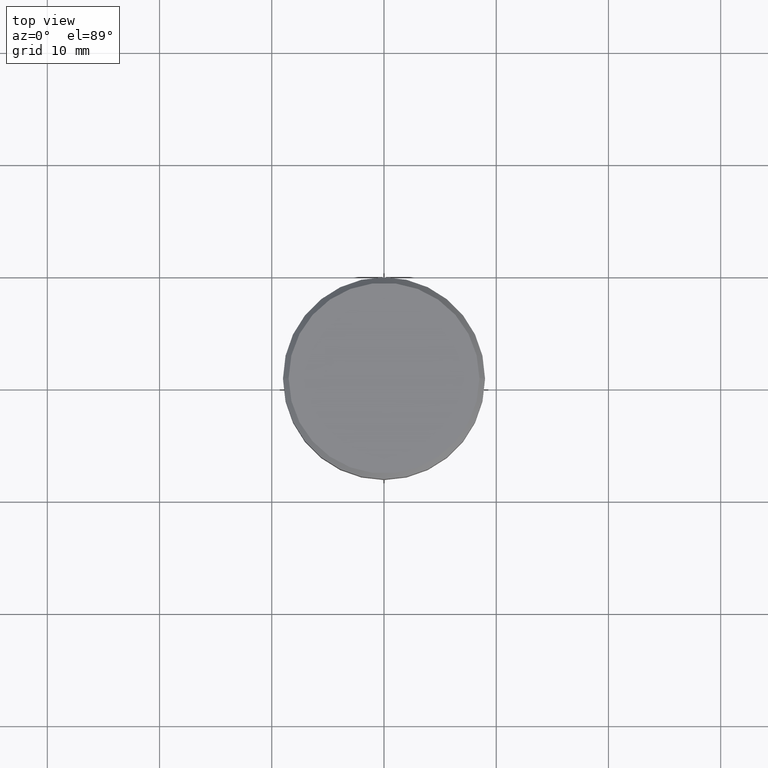
[diagram: clean part render]
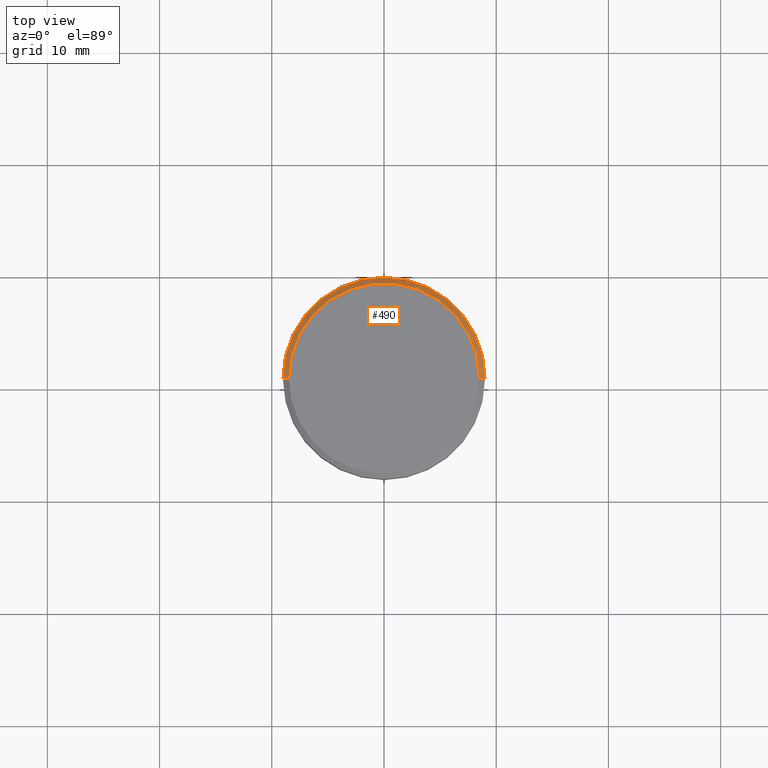
[diagram: same view with one face highlighted and labeled with its STEP entity id]
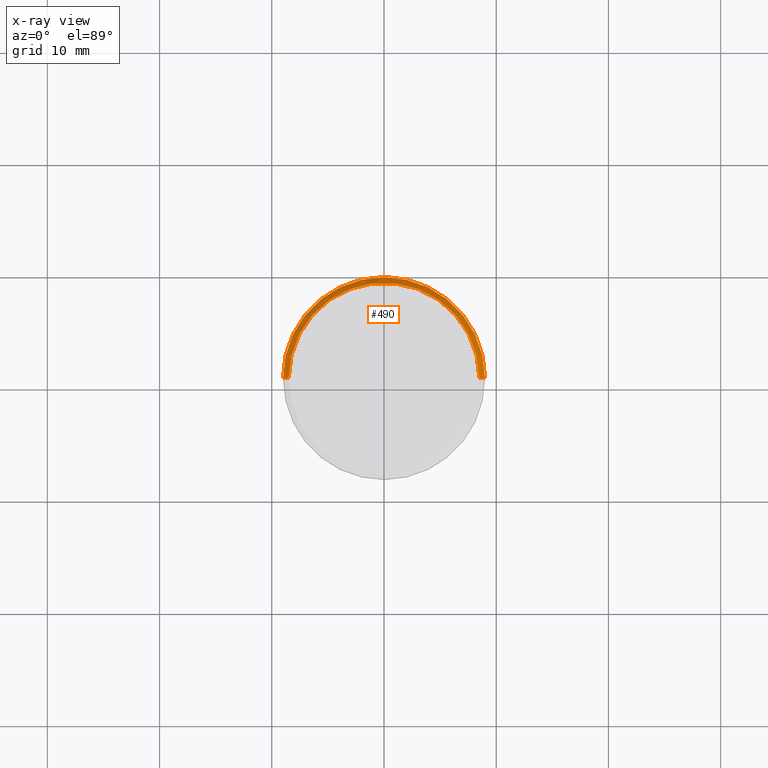
[diagram: x-ray of the same camera — body ghosted, the highlighted face saturated]
A machine part, top view. The second image highlights one B-rep face of the part: STEP entity #490.
The next image is the same camera in x-ray: the body ghosted, the highlighted face saturated — about 0% of this face is hidden behind the body in this view.
In plain terms, the highlighted conical surface has half-angle 45 deg.
Its self-contained STEP definition (entity closure, byte-faithful):
#22 = DIRECTION ( 'NONE',  ( 0.000000000000000000, 0.000000000000000000, -1.000000000000000000 ) ) ;
#50 = EDGE_CURVE ( 'NONE', #471, #875, #755, .T. ) ;
#113 = AXIS2_PLACEMENT_3D ( 'NONE', #296, #533, #709 ) ;
#120 = VERTEX_POINT ( 'NONE', #173 ) ;
#173 = CARTESIAN_POINT ( 'NONE',  ( -8.499999999999996447, 0.000000000000000000, 0.000000000000000000 ) ) ;
#201 = DIRECTION ( 'NONE',  ( -1.000000000000000000, 0.000000000000000000, 0.000000000000000000 ) ) ;
#219 = ORIENTED_EDGE ( 'NONE', *, *, #797, .F. ) ;
#247 = LINE ( 'NONE', #749, #343 ) ;
#257 = DIRECTION ( 'NONE',  ( 0.7071067811865451302, 8.659560562354903276E-17, -0.7071067811865500152 ) ) ;
#286 = FACE_OUTER_BOUND ( 'NONE', #782, .T. ) ;
#296 = CARTESIAN_POINT ( 'NONE',  ( 0.000000000000000000, 0.000000000000000000, 0.000000000000000000 ) ) ;
#329 = CONICAL_SURFACE ( 'NONE', #1024, 8.499999999999996447, 0.7853981633974447263 ) ;
#343 = VECTOR ( 'NONE', #665, 1000.000000000000114 ) ;
#392 = EDGE_CURVE ( 'NONE', #1030, #875, #940, .T. ) ;
#424 = EDGE_CURVE ( 'NONE', #120, #1030, #247, .T. ) ;
#471 = VERTEX_POINT ( 'NONE', #1051 ) ;
#474 = AXIS2_PLACEMENT_3D ( 'NONE', #920, #563, #740 ) ;
#490 = ADVANCED_FACE ( 'NONE', ( #286 ), #329, .T. ) ;
#497 = CARTESIAN_POINT ( 'NONE',  ( 8.499999999999996447, 1.040949779275249943E-15, 0.000000000000000000 ) ) ;
#533 = DIRECTION ( 'NONE',  ( -0.000000000000000000, -0.000000000000000000, 1.000000000000000000 ) ) ;
#563 = DIRECTION ( 'NONE',  ( 0.000000000000000000, 0.000000000000000000, -1.000000000000000000 ) ) ;
#603 = ORIENTED_EDGE ( 'NONE', *, *, #424, .F. ) ;
#643 = CARTESIAN_POINT ( 'NONE',  ( -9.000000000000000000, 1.102182119232617714E-15, -0.5000000000000056621 ) ) ;
#650 = CIRCLE ( 'NONE', #113, 8.499999999999996447 ) ;
#665 = DIRECTION ( 'NONE',  ( -0.7071067811865451302, 0.000000000000000000, -0.7071067811865500152 ) ) ;
#709 = DIRECTION ( 'NONE',  ( 1.000000000000000000, 0.000000000000000000, 0.000000000000000000 ) ) ;
#740 = DIRECTION ( 'NONE',  ( 1.000000000000000000, 0.000000000000000000, 0.000000000000000000 ) ) ;
#749 = CARTESIAN_POINT ( 'NONE',  ( -8.499999999999996447, 0.000000000000000000, 0.000000000000000000 ) ) ;
#755 = LINE ( 'NONE', #497, #956 ) ;
#782 = EDGE_LOOP ( 'NONE', ( #219, #1041, #960, #603 ) ) ;
#797 = EDGE_CURVE ( 'NONE', #471, #120, #650, .T. ) ;
#816 = CARTESIAN_POINT ( 'NONE',  ( 9.000000000000000000, 0.000000000000000000, -0.5000000000000056621 ) ) ;
#875 = VERTEX_POINT ( 'NONE', #816 ) ;
#920 = CARTESIAN_POINT ( 'NONE',  ( 0.000000000000000000, 0.000000000000000000, -0.5000000000000056621 ) ) ;
#940 = CIRCLE ( 'NONE', #474, 9.000000000000000000 ) ;
#956 = VECTOR ( 'NONE', #257, 1000.000000000000114 ) ;
#960 = ORIENTED_EDGE ( 'NONE', *, *, #392, .F. ) ;
#997 = CARTESIAN_POINT ( 'NONE',  ( 0.000000000000000000, 0.000000000000000000, 0.000000000000000000 ) ) ;
#1024 = AXIS2_PLACEMENT_3D ( 'NONE', #997, #22, #201 ) ;
#1030 = VERTEX_POINT ( 'NONE', #643 ) ;
#1041 = ORIENTED_EDGE ( 'NONE', *, *, #50, .T. ) ;
#1051 = CARTESIAN_POINT ( 'NONE',  ( 8.499999999999996447, 1.071565949253933730E-15, 0.000000000000000000 ) ) ;